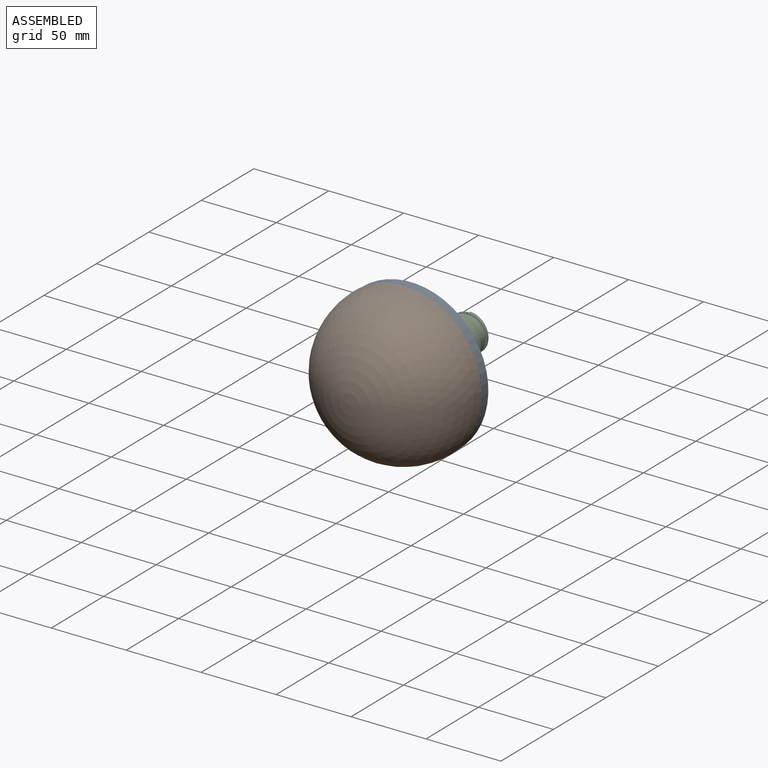
[diagram: assembled view]
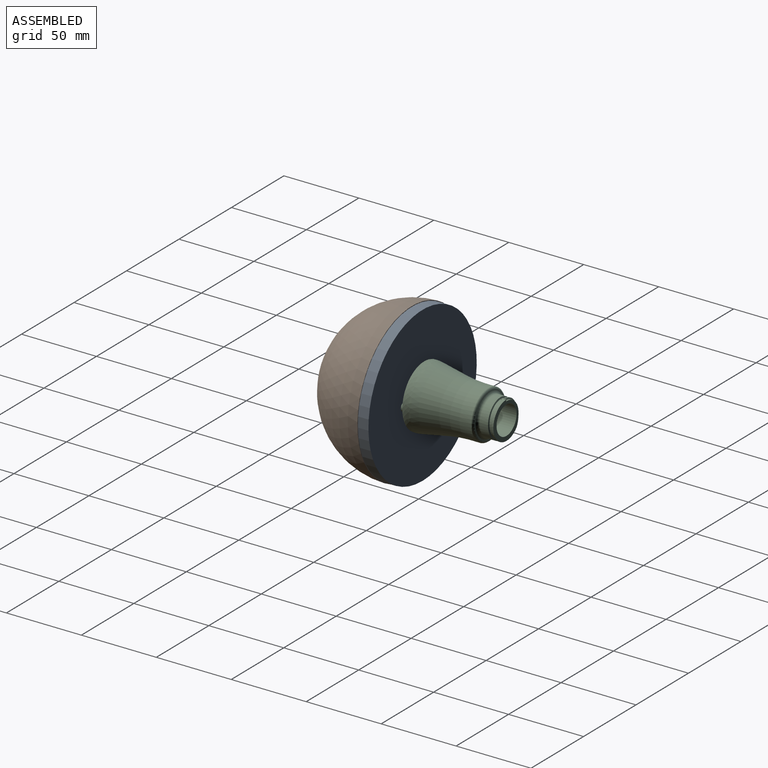
[diagram: assembled view, second angle]
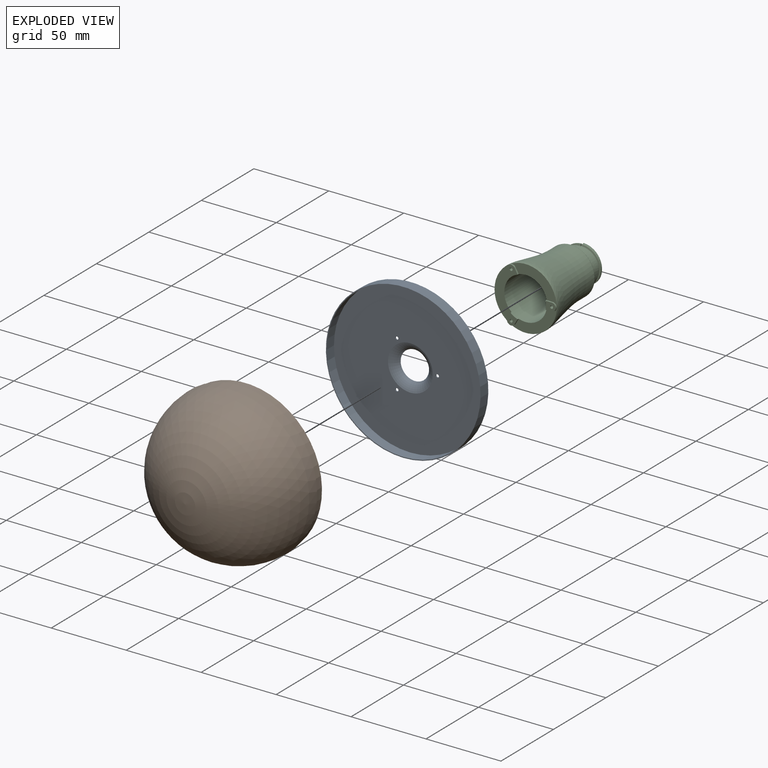
[diagram: exploded view]
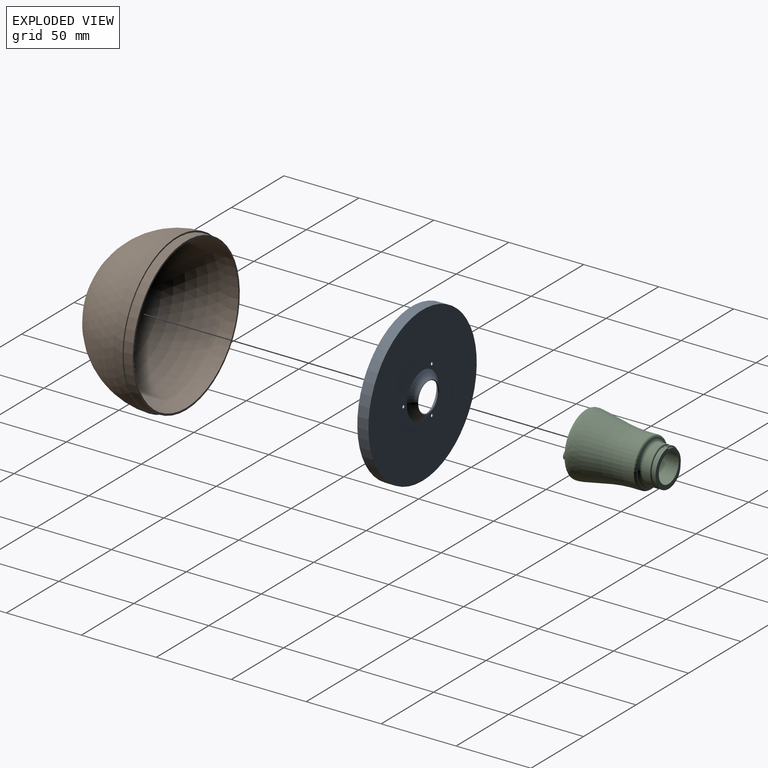
[diagram: exploded view, second angle]
ASSEMBLY  parts=3 mates=3
PART A: 11 faces, bbox 103.2x16.2x103.2 mm
  f0: cylinder r=1mm len=2mm, axis (0,1,0), area 3.8mm2, adj f4,f8
  f1: cylinder r=1mm len=2mm, axis (0,1,0), area 3.8mm2, adj f4,f8
  f2: plane 103.2x103.2mm, normal (0,-1,0), area 193.4mm2, adj f3,f9
  f3: cylinder r=51mm len=102mm, axis (0,-1,0), area 2183.2mm2, adj f2,f4
  f4: plane 102x102mm, normal (0,-1,0), area 7464mm2, adj f0,f1,f3,f5,f10
  f5: torus R=17.92mm, axis (0,-1,0), area 529.6mm2, adj f4,f6
  f6: cone r=9.49mm half-angle=58.9deg, axis (0,1,0), area 36.7mm2, adj f5,f7
  f7: torus R=17.92mm, axis (0,-1,0), area 503.8mm2, adj f6,f8
  f8: plane 103.2x103.2mm, normal (0,1,0), area 7648.4mm2, adj f0,f1,f7,f9,f10
  f9: cylinder r=51.6mm len=103.2mm, axis (0,-1,0), area 2403.4mm2, adj f2,f8
  f10: cylinder r=1mm len=2mm, axis (0,1,0), area 3.8mm2, adj f4,f8
PART B: 6 faces, bbox 104x58x104 mm
  f0: sphere r=49.75mm, area 15551.3mm2, adj f1
  f1: cylinder r=49.75mm len=99.5mm, axis (0,-1,0), area 1875.5mm2, adj f0,f2
  f2: plane 102x102mm, normal (0,1,0), area 395.6mm2, adj f1,f3
  f3: cylinder r=51mm len=102mm, axis (0,-1,0), area 1951.7mm2, adj f2,f4
  f4: plane 104x104mm, normal (0,1,0), area 323.6mm2, adj f3,f5
  f5: sphere r=52mm, area 16960.1mm2, adj f4
PART C: 40 faces, bbox 41.7x56.7x41.7 mm
  f0: plane 25.07x24.08mm, normal (0,1,0), area 182.7mm2, adj f4,f9,f10,f35,f36,f37,f39
  f1: cylinder r=12.5mm len=25mm, axis (0,-1,0), area 445.5mm2, adj f2,f3,f11,f34,f36
  f2: bspline ~28.87x25mm, area 96.9mm2, adj f1,f4,f34,f36
  f3: bspline ~18.75x14.43mm, area 19.1mm2, adj f1,f4,f34,f36
  f4: cylinder r=11.5mm len=23mm, axis (0,-1,0), area 152mm2, adj f0,f2,f3,f34,f35,f36,f37,f38
  f5: plane 31.13x20.75mm, normal (0,-1,0), area 205.3mm2, adj f7,f14,f18,f19,f26,f27
  f6: plane 35.94x11.38mm, normal (0,-1,0), area 205.3mm2, adj f7,f14,f22,f23,f24,f26
  f7: cylinder r=14.25mm len=42.87mm, axis (0,-1,0), area 3765.1mm2, adj f5,f6,f8,f15,f16,f17,f19,f20
  f8: torus R=13.5mm, axis (0,-1,0), area 502mm2, adj f7,f9
  f9: cylinder r=9.5mm len=19mm, axis (0,-1,0), area 545.6mm2, adj f0,f8
  f10: cylinder r=12.5mm len=25mm, axis (0,-1,0), area 50.9mm2, adj f0,f35,f37
  f11: torus R=14.5mm, axis (0,-1,0), area 247.5mm2, adj f1,f12
  f12: cone r=14.62mm half-angle=85.7deg, axis (0,-1,0), area 24.5mm2, adj f11,f13
  f13: torus R=14.5mm, axis (0,-1,0), area 191.7mm2, adj f12,f14
  f14: revolved ~42.8x41.58mm, area 4837.1mm2, adj f5,f6,f13,f15
  f15: plane 31.13x20.75mm, normal (0,-1,0), area 205.3mm2, adj f7,f14,f16,f18,f20,f22
  f16: plane 3.81x1mm, normal (0,0,1), area 3.8mm2, adj f7,f15,f17,f18
  f17: plane 6.77x5.5mm, normal (0,-1,0), area 29.8mm2, adj f7,f16,f18,f19,f33
  f18: cylinder r=2.75mm len=5.5mm, axis (0,-1,0), area 9.1mm2, adj f5,f15,f16,f17,f19
  f19: plane 3.81x1mm, normal (0,0,-1), area 3.8mm2, adj f5,f7,f17,f18
  f20: plane 3.3x1.9mm, normal (0.87,0,0.5), area 3.8mm2, adj f7,f15,f21,f22
  f21: plane 7.6x7.13mm, normal (0,-1,0), area 29.8mm2, adj f7,f20,f22,f23,f31
  f22: cylinder r=2.75mm len=5.23mm, axis (0,-1,0), area 9.1mm2, adj f6,f15,f20,f21,f23
  f23: plane 3.3x1.9mm, normal (-0.87,0,-0.5), area 3.8mm2, adj f6,f7,f21,f22
  f24: plane 3.3x1.9mm, normal (-0.87,0,0.5), area 3.8mm2, adj f6,f7,f25,f26
  f25: plane 7.6x7.13mm, normal (0,-1,0), area 29.8mm2, adj f7,f24,f26,f27,f29
  f26: cylinder r=2.75mm len=5.23mm, axis (0,-1,0), area 9.1mm2, adj f5,f6,f24,f25,f27
  f27: plane 3.3x1.9mm, normal (0.87,0,-0.5), area 3.8mm2, adj f5,f7,f25,f26
  f28: cone r=0mm half-angle=59deg, axis (0,-1,0), area 3.7mm2, adj f29
  f29: cylinder r=1mm len=6mm, axis (0,-1,0), area 37.7mm2, adj f25,f28
  f30: cone r=0mm half-angle=59deg, axis (0,-1,0), area 3.7mm2, adj f31
  f31: cylinder r=1mm len=6mm, axis (0,-1,0), area 37.7mm2, adj f21,f30
  f32: cone r=0mm half-angle=59deg, axis (0,-1,0), area 3.7mm2, adj f33
  f33: cylinder r=1mm len=6mm, axis (0,-1,0), area 37.7mm2, adj f17,f32
  f34: plane 2.3x1mm, normal (0,0,1), area 2.1mm2, adj f1,f2,f3,f4
  f35: bspline ~28.87x25mm, area 52.5mm2, adj f0,f4,f10,f37
  f36: plane 4x1.25mm, normal (1,0,0), area 2.1mm2, adj f0,f1,f2,f3,f4,f38,f39
  f37: plane 4x1.25mm, normal (-1,0,0), area 3.2mm2, adj f0,f4,f10,f35,f38,f39
  f38: plane 0.6x0.25mm, normal (0,1,0), area 0.2mm2, adj f4,f36,f37,f39
  f39: plane 4x0.6mm, normal (0,0,1), area 2.4mm2, adj f0,f36,f37,f38
PLACE A t=(-64.68,-107.68,-23.42)mm
PLACE B t=(-64.68,-108.64,-23.42)mm
PLACE C t=(-64.68,-107.68,-23.42)mm
MATE cylindrical B.f1 <-> A.f3  axis (0,-1,0) through (-64.68,-111.68,-23.42)mm
MATE cylindrical B.f1 <-> A.f3  axis (0,-1,0) through (-64.68,-111.68,-23.42)mm
MATE cylindrical C.f32 <-> A.f10  axis (0,-1,0) through (-46.68,-104.68,-23.42)mm
